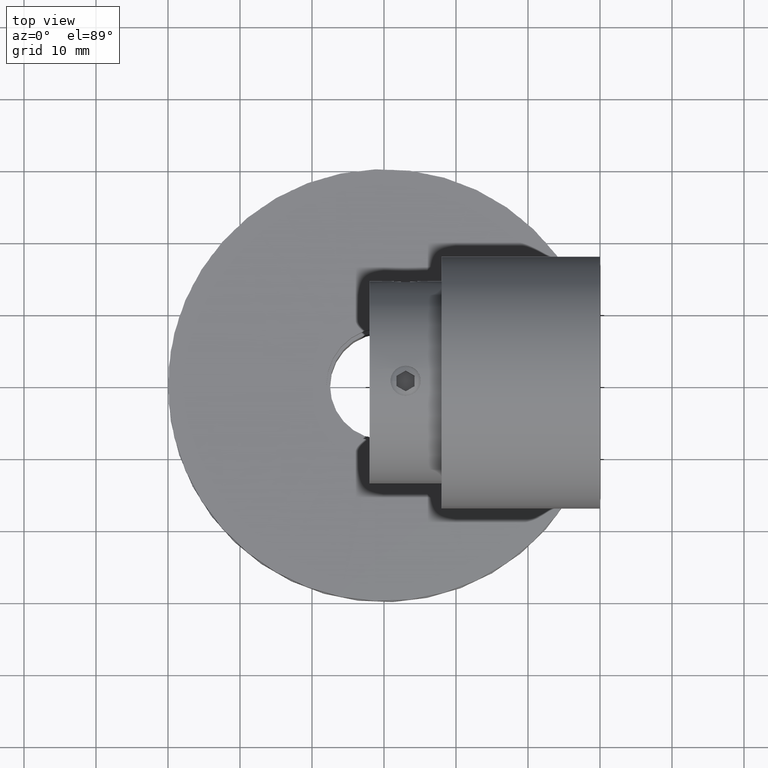
[diagram: clean part render]
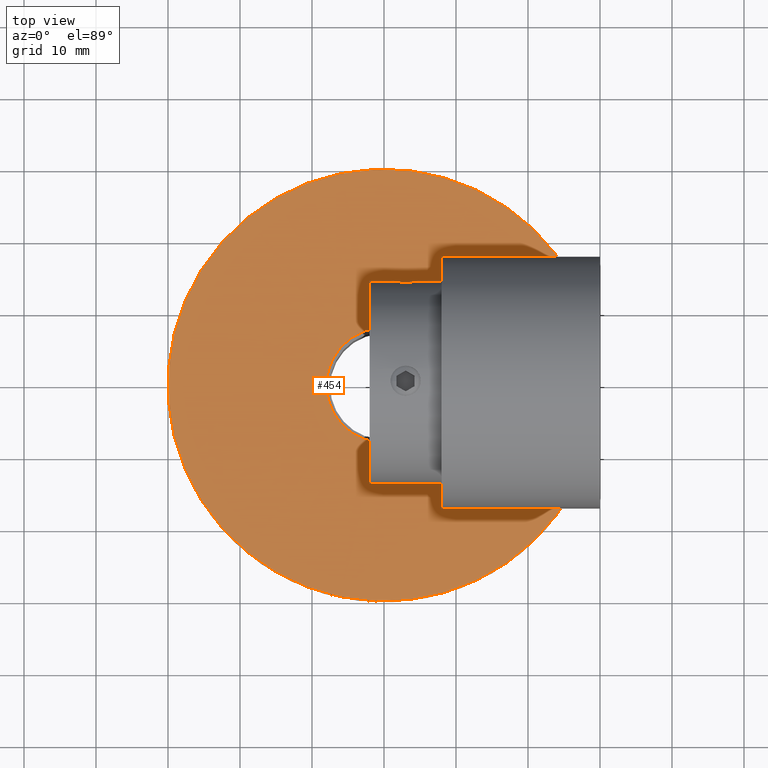
[diagram: same view with one face highlighted and labeled with its STEP entity id]
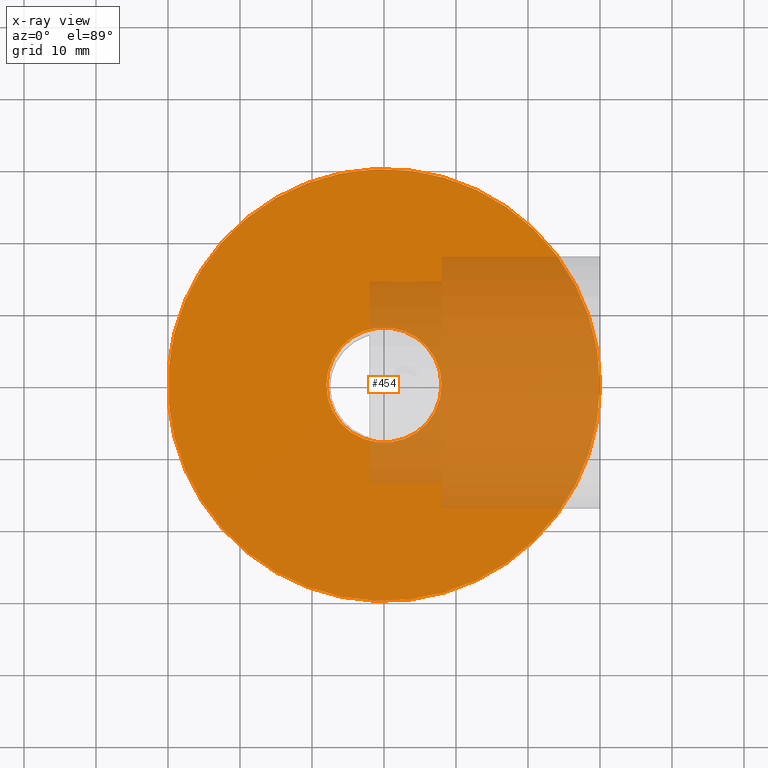
[diagram: x-ray of the same camera — body ghosted, the highlighted face saturated]
A machine part, top view. The second image highlights one B-rep face of the part: STEP entity #454.
The next image is the same camera in x-ray: the body ghosted, the highlighted face saturated — about 33% of this face is hidden behind the body in this view.
In plain terms, the highlighted planar face has unit normal (0, 0, 1).
Its self-contained STEP definition (entity closure, byte-faithful):
#454 = ADVANCED_FACE( '', ( #537, #538 ), #539, .T. );
#537 = FACE_OUTER_BOUND( '', #721, .T. );
#538 = FACE_BOUND( '', #722, .T. );
#539 = PLANE( '', #723 );
#721 = EDGE_LOOP( '', ( #907 ) );
#722 = EDGE_LOOP( '', ( #908 ) );
#723 = AXIS2_PLACEMENT_3D( '', #909, #910, #911 );
#907 = ORIENTED_EDGE( '', *, *, #1335, .T. );
#908 = ORIENTED_EDGE( '', *, *, #1336, .F. );
#909 = CARTESIAN_POINT( '', ( 0.000000000000000, 0.000000000000000, 26.5000000000000 ) );
#910 = DIRECTION( '', ( 0.000000000000000, 0.000000000000000, 1.00000000000000 ) );
#911 = DIRECTION( '', ( 1.00000000000000, 0.000000000000000, 0.000000000000000 ) );
#1335 = EDGE_CURVE( '', #1452, #1452, #1453, .T. );
#1336 = EDGE_CURVE( '', #1454, #1454, #1455, .T. );
#1452 = VERTEX_POINT( '', #1652 );
#1453 = CIRCLE( '', #1653, 30.0000000000000 );
#1454 = VERTEX_POINT( '', #1654 );
#1455 = CIRCLE( '', #1655, 8.00000000000000 );
#1652 = CARTESIAN_POINT( '', ( 30.0000000000000, 0.000000000000000, 26.5000000000000 ) );
#1653 = AXIS2_PLACEMENT_3D( '', #2469, #2470, #2471 );
#1654 = CARTESIAN_POINT( '', ( 8.00000000000000, 0.000000000000000, 26.5000000000000 ) );
#1655 = AXIS2_PLACEMENT_3D( '', #2472, #2473, #2474 );
#2469 = CARTESIAN_POINT( '', ( 0.000000000000000, 0.000000000000000, 26.5000000000000 ) );
#2470 = DIRECTION( '', ( 0.000000000000000, 0.000000000000000, 1.00000000000000 ) );
#2471 = DIRECTION( '', ( 1.00000000000000, 0.000000000000000, 0.000000000000000 ) );
#2472 = CARTESIAN_POINT( '', ( 0.000000000000000, 0.000000000000000, 26.5000000000000 ) );
#2473 = DIRECTION( '', ( 0.000000000000000, 0.000000000000000, 1.00000000000000 ) );
#2474 = DIRECTION( '', ( 1.00000000000000, 0.000000000000000, 0.000000000000000 ) );